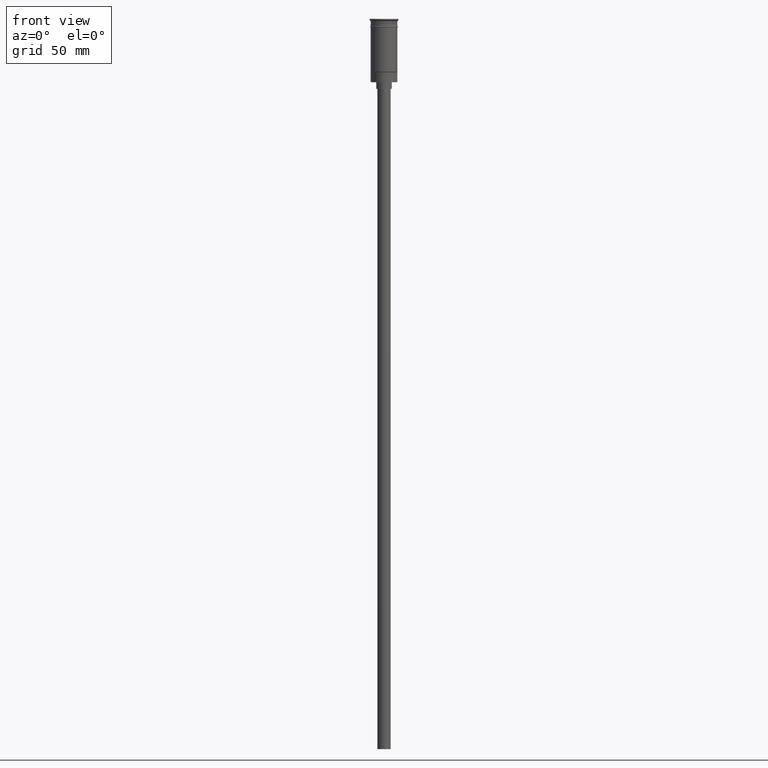
[diagram: clean part render]
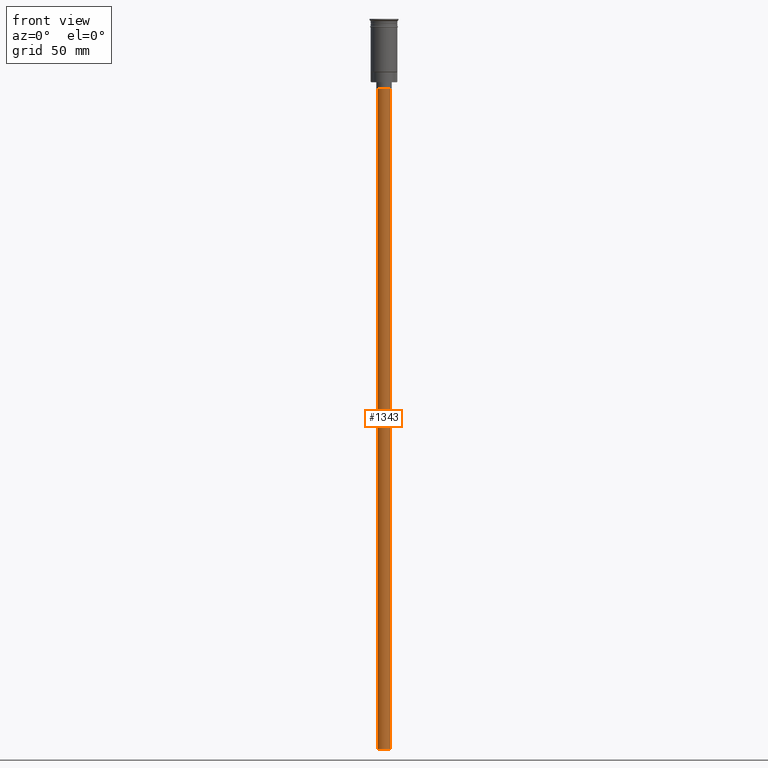
[diagram: same view with one face highlighted and labeled with its STEP entity id]
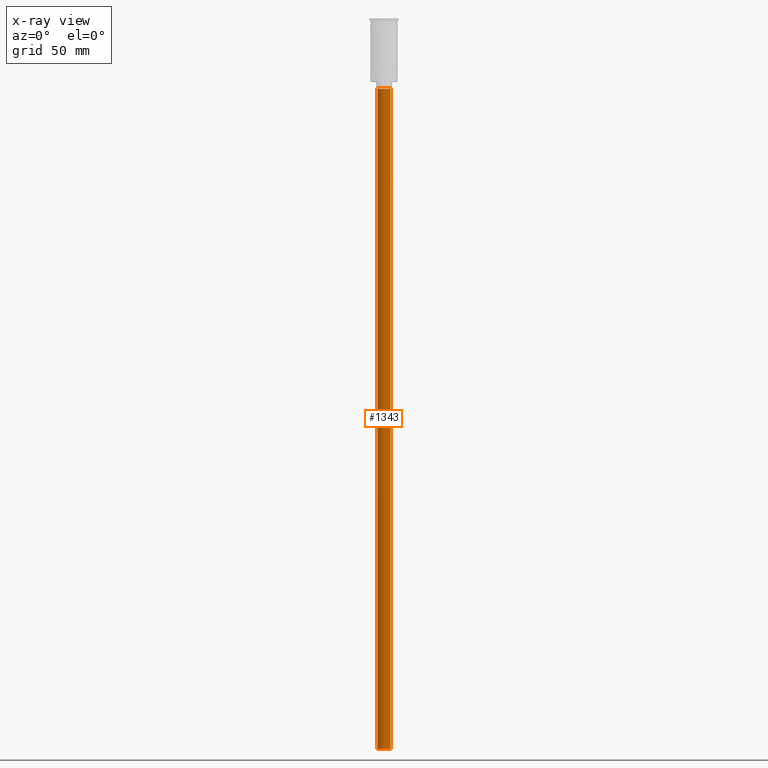
[diagram: x-ray of the same camera — body ghosted, the highlighted face saturated]
A machine part, front view. The second image highlights one B-rep face of the part: STEP entity #1343.
The next image is the same camera in x-ray: the body ghosted, the highlighted face saturated — about 0% of this face is hidden behind the body in this view.
In plain terms, the highlighted cylindrical surface (edge-blend (fillet) strip) has radius 3 mm, axis along (-0, -0, 1).
Its self-contained STEP definition (entity closure, byte-faithful):
#46 = VECTOR ( 'NONE', #544, 1000.000000000000000 ) ;
#72 = VERTEX_POINT ( 'NONE', #242 ) ;
#140 = ORIENTED_EDGE ( 'NONE', *, *, #898, .F. ) ;
#188 = DIRECTION ( 'NONE',  ( 0.000000000000000000, 0.000000000000000000, -1.000000000000000000 ) ) ;
#199 = CARTESIAN_POINT ( 'NONE',  ( 0.000000000000000000, 0.000000000000000000, -328.5000000000000000 ) ) ;
#206 = EDGE_CURVE ( 'NONE', #380, #528, #548, .T. ) ;
#223 = AXIS2_PLACEMENT_3D ( 'NONE', #199, #1087, #1314 ) ;
#242 = CARTESIAN_POINT ( 'NONE',  ( 3.000000000000000444, 0.000000000000000000, -328.5000000000000000 ) ) ;
#311 = AXIS2_PLACEMENT_3D ( 'NONE', #792, #370, #845 ) ;
#317 = CYLINDRICAL_SURFACE ( 'NONE', #311, 3.000000000000000444 ) ;
#370 = DIRECTION ( 'NONE',  ( -0.000000000000000000, -0.000000000000000000, 1.000000000000000000 ) ) ;
#380 = VERTEX_POINT ( 'NONE', #828 ) ;
#414 = CARTESIAN_POINT ( 'NONE',  ( -3.000000000000000444, 3.673940397442060361E-16, -328.5000000000000000 ) ) ;
#441 = ORIENTED_EDGE ( 'NONE', *, *, #742, .F. ) ;
#442 = EDGE_LOOP ( 'NONE', ( #140, #441, #1294, #1177 ) ) ;
#460 = VERTEX_POINT ( 'NONE', #414 ) ;
#506 = VECTOR ( 'NONE', #1216, 1000.000000000000000 ) ;
#528 = VERTEX_POINT ( 'NONE', #1590 ) ;
#544 = DIRECTION ( 'NONE',  ( -0.000000000000000000, -0.000000000000000000, 1.000000000000000000 ) ) ;
#548 = CIRCLE ( 'NONE', #907, 3.000000000000000444 ) ;
#671 = CARTESIAN_POINT ( 'NONE',  ( 0.000000000000000000, 0.000000000000000000, -31.50000000000000000 ) ) ;
#742 = EDGE_CURVE ( 'NONE', #72, #460, #1073, .T. ) ;
#744 = LINE ( 'NONE', #1234, #506 ) ;
#792 = CARTESIAN_POINT ( 'NONE',  ( 0.000000000000000000, 0.000000000000000000, -328.5000000000000000 ) ) ;
#798 = CARTESIAN_POINT ( 'NONE',  ( 3.000000000000000444, 0.000000000000000000, -328.5000000000000000 ) ) ;
#828 = CARTESIAN_POINT ( 'NONE',  ( 3.000000000000000444, 0.000000000000000000, -31.50000000000000000 ) ) ;
#845 = DIRECTION ( 'NONE',  ( 1.000000000000000000, 0.000000000000000000, 0.000000000000000000 ) ) ;
#898 = EDGE_CURVE ( 'NONE', #460, #528, #744, .T. ) ;
#907 = AXIS2_PLACEMENT_3D ( 'NONE', #671, #188, #1520 ) ;
#1073 = CIRCLE ( 'NONE', #223, 3.000000000000000444 ) ;
#1087 = DIRECTION ( 'NONE',  ( 0.000000000000000000, 0.000000000000000000, -1.000000000000000000 ) ) ;
#1177 = ORIENTED_EDGE ( 'NONE', *, *, #206, .T. ) ;
#1216 = DIRECTION ( 'NONE',  ( -0.000000000000000000, -0.000000000000000000, 1.000000000000000000 ) ) ;
#1234 = CARTESIAN_POINT ( 'NONE',  ( -3.000000000000000444, 3.673940397442060361E-16, -328.5000000000000000 ) ) ;
#1260 = EDGE_CURVE ( 'NONE', #72, #380, #1523, .T. ) ;
#1294 = ORIENTED_EDGE ( 'NONE', *, *, #1260, .T. ) ;
#1314 = DIRECTION ( 'NONE',  ( -1.000000000000000000, 0.000000000000000000, 0.000000000000000000 ) ) ;
#1343 = ADVANCED_FACE ( 'NONE', ( #1411 ), #317, .T. ) ;
#1411 = FACE_OUTER_BOUND ( 'NONE', #442, .T. ) ;
#1520 = DIRECTION ( 'NONE',  ( -1.000000000000000000, 0.000000000000000000, 0.000000000000000000 ) ) ;
#1523 = LINE ( 'NONE', #798, #46 ) ;
#1590 = CARTESIAN_POINT ( 'NONE',  ( -3.000000000000000444, 3.673940397442060361E-16, -31.50000000000000000 ) ) ;